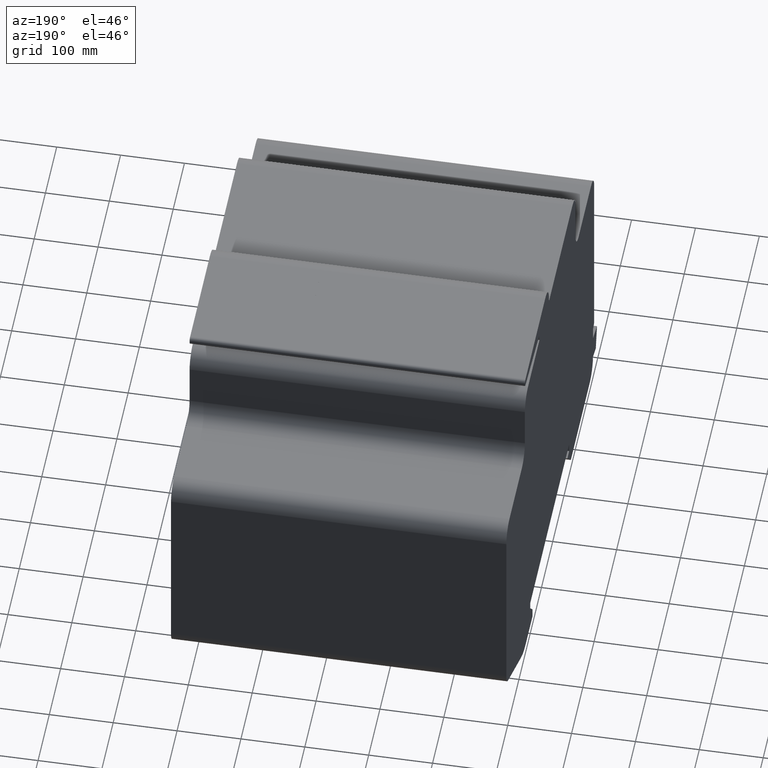
[diagram: clean part render]
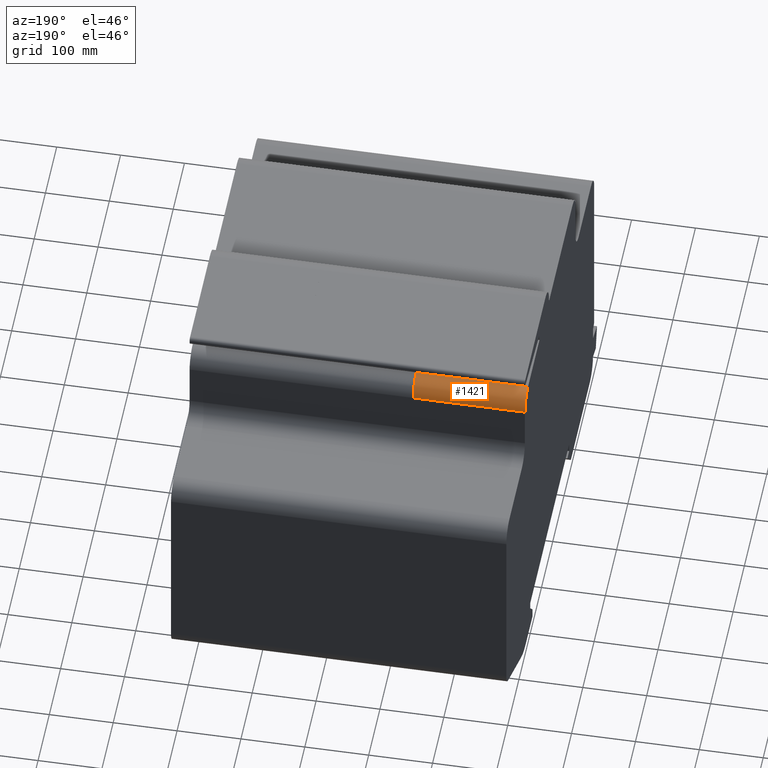
[diagram: same view with one face highlighted and labeled with its STEP entity id]
A machine part, auxiliary view. The second image highlights one B-rep face of the part: STEP entity #1421.
In plain terms, the highlighted cylindrical surface (edge-blend (fillet) strip) has radius 28 mm, axis along (1, 0, 0).
Its self-contained STEP definition (entity closure, byte-faithful):
#1363=CARTESIAN_POINT('',(175.00000000000028,18.799999999999955,500.00000000000006));
#1364=VERTEX_POINT('',#1363);
#1371=CARTESIAN_POINT('',(0.0,18.799999999999955,500.00000000000006));
#1372=VERTEX_POINT('',#1371);
#1373=CARTESIAN_POINT('',(0.0,18.799999999999955,500.00000000000006));
#1374=DIRECTION('',(1.0,0.0,0.0));
#1375=VECTOR('',#1374,175.00000000000028);
#1376=LINE('',#1373,#1375);
#1377=EDGE_CURVE('',#1372,#1364,#1376,.T.);
#1389=CARTESIAN_POINT('',(0.0,18.799999999999955,472.0));
#1390=DIRECTION('',(1.0,0.0,0.0));
#1391=DIRECTION('',(0.0,0.707106781186549,0.707106781186546));
#1392=AXIS2_PLACEMENT_3D('',#1389,#1390,#1391);
#1393=CYLINDRICAL_SURFACE('',#1392,28.000000000000039);
#1394=CARTESIAN_POINT('',(175.00000000000028,46.799999999999926,471.99999999999994));
#1395=VERTEX_POINT('',#1394);
#1396=CARTESIAN_POINT('',(175.00000000000028,18.799999999999955,472.0));
#1397=DIRECTION('',(-1.0,0.0,0.0));
#1398=DIRECTION('',(0.0,0.707106781186549,0.707106781186546));
#1399=AXIS2_PLACEMENT_3D('',#1396,#1397,#1398);
#1400=CIRCLE('',#1399,28.000000000000039);
#1401=EDGE_CURVE('',#1364,#1395,#1400,.T.);
#1402=ORIENTED_EDGE('',*,*,#1401,.T.);
#1403=CARTESIAN_POINT('',(0.0,46.799999999999926,471.99999999999994));
#1404=VERTEX_POINT('',#1403);
#1405=CARTESIAN_POINT('',(0.0,46.799999999999926,471.99999999999994));
#1406=DIRECTION('',(1.0,0.0,0.0));
#1407=VECTOR('',#1406,175.00000000000028);
#1408=LINE('',#1405,#1407);
#1409=EDGE_CURVE('',#1404,#1395,#1408,.T.);
#1410=ORIENTED_EDGE('',*,*,#1409,.F.);
#1411=CARTESIAN_POINT('',(0.0,18.799999999999955,472.0));
#1412=DIRECTION('',(-1.0,0.0,0.0));
#1413=DIRECTION('',(0.0,0.707106781186549,0.707106781186546));
#1414=AXIS2_PLACEMENT_3D('',#1411,#1412,#1413);
#1415=CIRCLE('',#1414,28.000000000000039);
#1416=EDGE_CURVE('',#1372,#1404,#1415,.T.);
#1417=ORIENTED_EDGE('',*,*,#1416,.F.);
#1418=ORIENTED_EDGE('',*,*,#1377,.T.);
#1419=EDGE_LOOP('',(#1402,#1410,#1417,#1418));
#1420=FACE_OUTER_BOUND('',#1419,.T.);
#1421=ADVANCED_FACE('',(#1420),#1393,.T.);